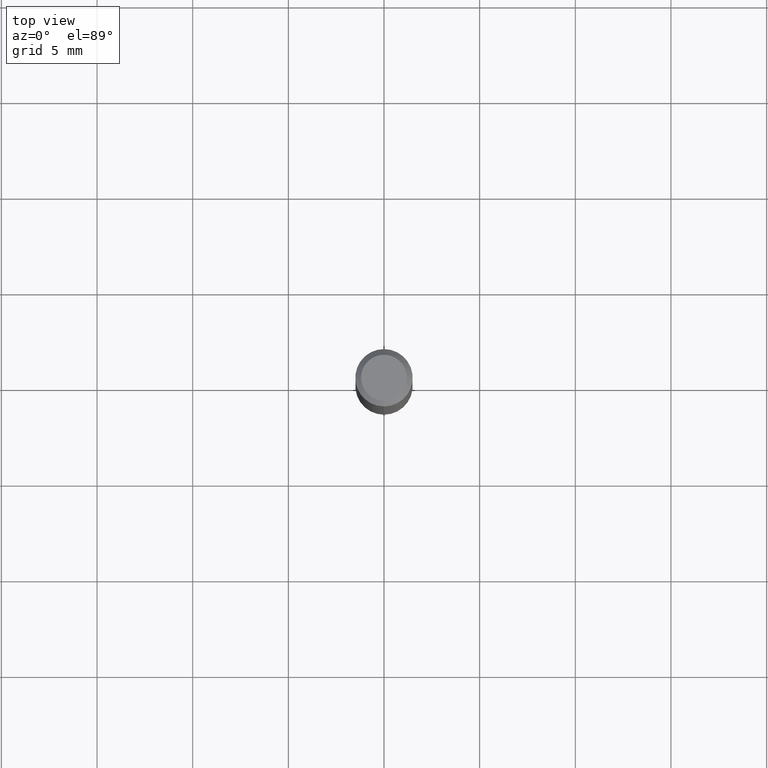
[diagram: clean part render]
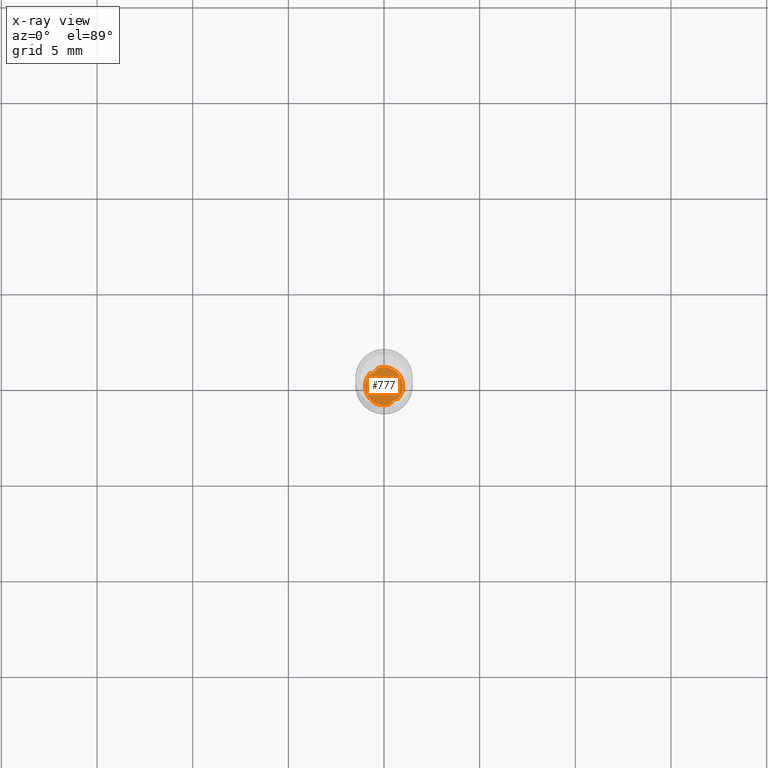
[diagram: x-ray — body ghosted, one internal face saturated and labeled with its STEP entity id]
A machine part, top view, then the same camera in x-ray: the body is ghosted and one INTERNAL B-rep face — a face not visible from any outside direction — is saturated and labeled: STEP entity #777.
In plain terms, the highlighted planar face has unit normal (-0, 0, 1).
Its self-contained STEP definition (entity closure, byte-faithful):
#295=VERTEX_POINT('',#826);
#347=EDGE_CURVE('',#533,#751,#882,.T.);
#459=EDGE_CURVE('',#751,#295,#1009,.T.);
#469=EDGE_CURVE('',#525,#295,#1019,.T.);
#489=VERTEX_POINT('',#1042);
#511=EDGE_CURVE('',#489,#663,#1065,.T.);
#525=VERTEX_POINT('',#1081);
#533=VERTEX_POINT('',#1089);
#643=EDGE_CURVE('',#525,#489,#1209,.T.);
#663=VERTEX_POINT('',#1231);
#737=EDGE_CURVE('',#533,#663,#1310,.T.);
#751=VERTEX_POINT('',#1324);
#777=ADVANCED_FACE('',(#1353),#1354,.T.);
#826=CARTESIAN_POINT('',(-0.75179254644429,0.651639453310502,-26.0));
#882=CIRCLE('',#1640,0.9949);
#1009=CIRCLE('',#2907,0.9949);
#1019=B_SPLINE_CURVE_WITH_KNOTS('',3,(#2947,#2948,#2949,#2950,#2951,#2952,#2953,#2954,#2955,#2956,#2957,#2958),.UNSPECIFIED.,.F.,.F.,(4,2,2,2,2,4),(0.0,0.222369750663424,0.422408130024564,0.619491112897691,0.7769905914402,0.943061898707288),.UNSPECIFIED.);
#1042=CARTESIAN_POINT('',(-1.21912744447031E-016,0.9949,-26.0));
#1065=CIRCLE('',#3461,0.9949);
#1081=CARTESIAN_POINT('',(-0.343119279252684,0.933860359050066,-26.0));
#1089=CARTESIAN_POINT('',(0.343119279252681,-0.933860359050067,-26.0));
#1209=CIRCLE('',#4543,0.9949);
#1231=CARTESIAN_POINT('',(0.751792546444295,-0.651639453310496,-26.0));
#1310=B_SPLINE_CURVE_WITH_KNOTS('',3,(#4830,#4831,#4832,#4833,#4834,#4835,#4836,#4837,#4838,#4839,#4840,#4841),.UNSPECIFIED.,.F.,.F.,(4,2,2,2,2,4),(0.0,0.222369750663382,0.422408130024502,0.619491112897629,0.776990591440142,0.943061898707232),.UNSPECIFIED.);
#1324=CARTESIAN_POINT('',(1.21912742254406E-016,-0.9949,-26.0));
#1353=FACE_OUTER_BOUND('',#5091,.T.);
#1354=PLANE('',#5092);
#1640=AXIS2_PLACEMENT_3D('',#5365,#5366,#5367);
#2907=AXIS2_PLACEMENT_3D('',#5530,#5531,#5532);
#2947=CARTESIAN_POINT('',(-0.301837261203628,1.0449,-26.0));
#2948=CARTESIAN_POINT('',(-0.320657275850629,0.973205765419856,-26.0));
#2949=CARTESIAN_POINT('',(-0.35200609760638,0.905845918569066,-25.9999999999949));
#2950=CARTESIAN_POINT('',(-0.437156125260771,0.794145250175652,-25.9999999999949));
#2951=CARTESIAN_POINT('',(-0.486972527471351,0.750094317351708,-26.0000000000002));
#2952=CARTESIAN_POINT('',(-0.601401146130192,0.684389305594746,-26.0000000000002));
#2953=CARTESIAN_POINT('',(-0.663701667412689,0.663605589347072,-26.0));
#2954=CARTESIAN_POINT('',(-0.780464340131513,0.647077229357271,-26.0));
#2955=CARTESIAN_POINT('',(-0.833063028852891,0.647264541455508,-26.0));
#2956=CARTESIAN_POINT('',(-0.939850206188998,0.661279073003857,-26.0));
#2957=CARTESIAN_POINT('',(-0.993508431705244,0.675778526162517,-26.0));
#2958=CARTESIAN_POINT('',(-1.0449,0.696279157081311,-26.0));
#3461=AXIS2_PLACEMENT_3D('',#5583,#5584,#5585);
#4543=AXIS2_PLACEMENT_3D('',#5756,#5757,#5758);
#4830=CARTESIAN_POINT('',(0.301837261203627,-1.0449,-26.0));
#4831=CARTESIAN_POINT('',(0.320657275850624,-0.973205765419871,-26.0));
#4832=CARTESIAN_POINT('',(0.352006097606372,-0.90584591856907,-25.999999999995));
#4833=CARTESIAN_POINT('',(0.437156125260774,-0.79414525017564,-25.999999999995));
#4834=CARTESIAN_POINT('',(0.486972527471353,-0.750094317351703,-26.0000000000002));
#4835=CARTESIAN_POINT('',(0.601401146130189,-0.684389305594743,-26.0000000000002));
#4836=CARTESIAN_POINT('',(0.663701667412688,-0.663605589347069,-26.0));
#4837=CARTESIAN_POINT('',(0.78046434013151,-0.647077229357267,-26.0));
#4838=CARTESIAN_POINT('',(0.833063028852888,-0.647264541455504,-26.0));
#4839=CARTESIAN_POINT('',(0.939850206188998,-0.661279073003853,-26.0));
#4840=CARTESIAN_POINT('',(0.993508431705245,-0.675778526162514,-26.0));
#4841=CARTESIAN_POINT('',(1.0449,-0.696279157081307,-26.0));
#5091=EDGE_LOOP('',(#5891,#5892,#5893,#5894,#5895,#5896));
#5092=AXIS2_PLACEMENT_3D('',#5897,#5898,#5899);
#5365=CARTESIAN_POINT('',(0.0,0.0,-26.0));
#5366=DIRECTION('',(0.0,0.0,-1.0));
#5367=DIRECTION('',(0.0,1.0,0.0));
#5530=CARTESIAN_POINT('',(0.0,0.0,-26.0));
#5531=DIRECTION('',(0.0,0.0,-1.0));
#5532=DIRECTION('',(0.0,1.0,0.0));
#5583=CARTESIAN_POINT('',(0.0,0.0,-26.0));
#5584=DIRECTION('',(0.0,0.0,-1.0));
#5585=DIRECTION('',(0.0,1.0,0.0));
#5756=CARTESIAN_POINT('',(0.0,0.0,-26.0));
#5757=DIRECTION('',(0.0,0.0,-1.0));
#5758=DIRECTION('',(0.0,1.0,0.0));
#5891=ORIENTED_EDGE('',*,*,#737,.T.);
#5892=ORIENTED_EDGE('',*,*,#511,.F.);
#5893=ORIENTED_EDGE('',*,*,#643,.F.);
#5894=ORIENTED_EDGE('',*,*,#469,.T.);
#5895=ORIENTED_EDGE('',*,*,#459,.F.);
#5896=ORIENTED_EDGE('',*,*,#347,.F.);
#5897=CARTESIAN_POINT('',(0.0,0.49745,-26.0));
#5898=DIRECTION('',(-0.0,0.0,1.0));
#5899=DIRECTION('',(0.0,-1.0,0.0));